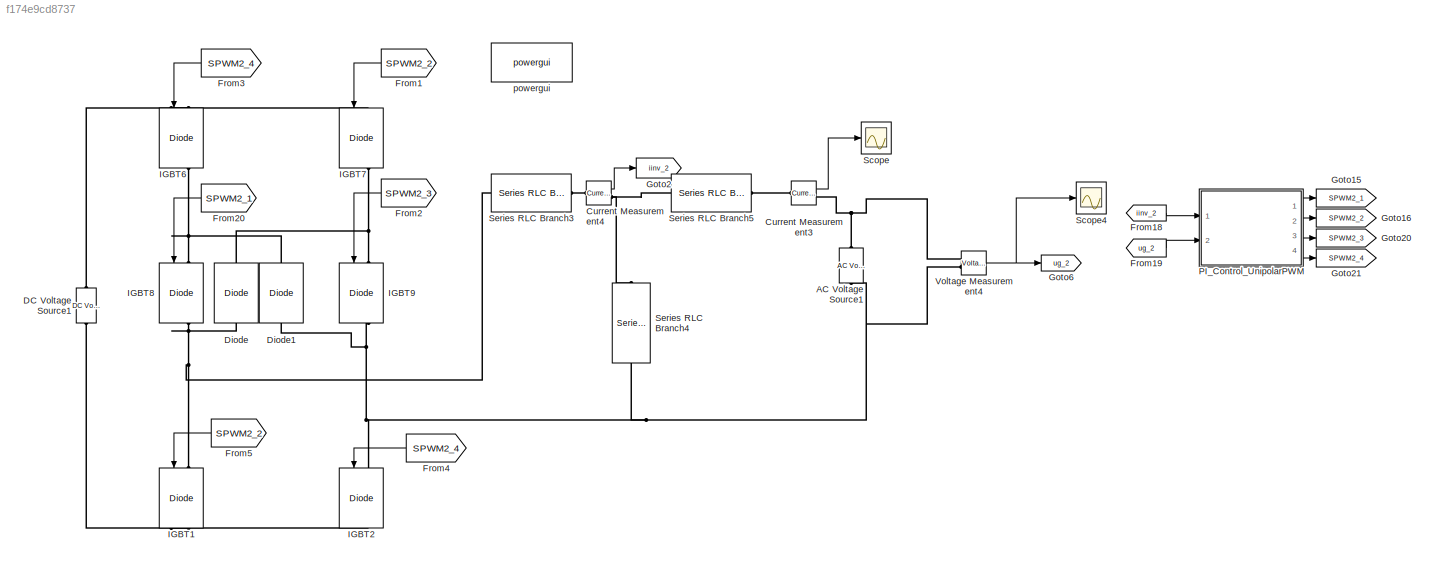
MODEL slx_f174e9cd8737
KIND model
CONFIG AbsTol = auto
CONFIG EnableMultiTasking = off
CONFIG FixedStep = 5e-7
CONFIG MaxStep = auto
CONFIG MinStep = auto
CONFIG RelTol = 1e-3
CONFIG SampleTimeConstraint = Unconstrained
CONFIG SolverName = FixedStepDiscrete
CONFIG StartTime = 0.0
CONFIG StopTime = 2
BLOCK [Reference] AC Voltage Source1  REF=powerlib/Electrical
Sources/AC Voltage Source
  NameLocation = right
  Ports = [0, 0, 0, 0, 0, 1, 1]
  SourceBlock = powerlib/Electrical\nSources/AC Voltage Source
  SourceProductBaseCode = PS
  SourceType = AC Voltage Source
BLOCK [Reference] Current Measurement3  REF=powerlib/Measurements/Current Measurement
  NameLocation = top
  Ports = [0, 1, 0, 0, 0, 1, 1]
  SourceBlock = powerlib/Measurements/Current Measurement
  SourceProductBaseCode = PS
  SourceType = Current Measurement
  UserDataPersistent = on
BLOCK [Reference] Current Measurement4  REF=powerlib/Measurements/Current Measurement
  NameLocation = top
  Ports = [0, 1, 0, 0, 0, 1, 1]
  SourceBlock = powerlib/Measurements/Current Measurement
  SourceProductBaseCode = PS
  SourceType = Current Measurement
  UserDataPersistent = on
BLOCK [Reference] DC Voltage Source1  REF=powerlib/Electrical
Sources/DC Voltage Source
  NameLocation = right
  Ports = [0, 0, 0, 0, 0, 1, 1]
  SourceBlock = powerlib/Electrical\nSources/DC Voltage Source
  SourceProductBaseCode = PS
  SourceType = DC Voltage Source
BLOCK [Reference] Diode  REF=powerlib/Power
Electronics/Diode
  NameLocation = right
  Ports = [0, 0, 0, 0, 0, 1, 1]
  SourceBlock = powerlib/Power\nElectronics/Diode
  SourceProductBaseCode = PS
  SourceType = Diode
BLOCK [Reference] Diode1  REF=powerlib/Power
Electronics/Diode
  NameLocation = right
  Ports = [0, 0, 0, 0, 0, 1, 1]
  SourceBlock = powerlib/Power\nElectronics/Diode
  SourceProductBaseCode = PS
  SourceType = Diode
BLOCK [From] From1
  GotoTag = SPWM2_2
  NameLocation = top
BLOCK [From] From18
  GotoTag = iinv_2
BLOCK [From] From19
  GotoTag = ug_2
BLOCK [From] From2
  GotoTag = SPWM2_3
  NameLocation = top
BLOCK [From] From20
  GotoTag = SPWM2_1
  NameLocation = top
BLOCK [From] From3
  GotoTag = SPWM2_4
  NameLocation = top
BLOCK [From] From4
  GotoTag = SPWM2_4
  NameLocation = top
BLOCK [From] From5
  GotoTag = SPWM2_2
  NameLocation = top
BLOCK [Goto] Goto15
  GotoTag = SPWM2_1
BLOCK [Goto] Goto16
  GotoTag = SPWM2_2
BLOCK [Goto] Goto2
  GotoTag = iinv_2
BLOCK [Goto] Goto20
  GotoTag = SPWM2_3
BLOCK [Goto] Goto21
  GotoTag = SPWM2_4
BLOCK [Goto] Goto6
  GotoTag = ug_2
BLOCK [Reference] IGBT1  REF=powerlib/Power
Electronics/IGBT//Diode
  NameLocation = left
  Ports = [1, 1, 0, 0, 0, 1, 1]
  SourceBlock = powerlib/Power\nElectronics/IGBT//Diode
  SourceProductBaseCode = PS
  SourceType = IGBT/Diode
BLOCK [Reference] IGBT2  REF=powerlib/Power
Electronics/IGBT//Diode
  NameLocation = left
  Ports = [1, 1, 0, 0, 0, 1, 1]
  SourceBlock = powerlib/Power\nElectronics/IGBT//Diode
  SourceProductBaseCode = PS
  SourceType = IGBT/Diode
BLOCK [Reference] IGBT6  REF=powerlib/Power
Electronics/IGBT//Diode
  NameLocation = left
  Ports = [1, 1, 0, 0, 0, 1, 1]
  SourceBlock = powerlib/Power\nElectronics/IGBT//Diode
  SourceProductBaseCode = PS
  SourceType = IGBT/Diode
BLOCK [Reference] IGBT7  REF=powerlib/Power
Electronics/IGBT//Diode
  NameLocation = left
  Ports = [1, 1, 0, 0, 0, 1, 1]
  SourceBlock = powerlib/Power\nElectronics/IGBT//Diode
  SourceProductBaseCode = PS
  SourceType = IGBT/Diode
BLOCK [Reference] IGBT8  REF=powerlib/Power
Electronics/IGBT//Diode
  NameLocation = left
  Ports = [1, 1, 0, 0, 0, 1, 1]
  SourceBlock = powerlib/Power\nElectronics/IGBT//Diode
  SourceProductBaseCode = PS
  SourceType = IGBT/Diode
BLOCK [Reference] IGBT9  REF=powerlib/Power
Electronics/IGBT//Diode
  NameLocation = left
  Ports = [1, 1, 0, 0, 0, 1, 1]
  SourceBlock = powerlib/Power\nElectronics/IGBT//Diode
  SourceProductBaseCode = PS
  SourceType = IGBT/Diode
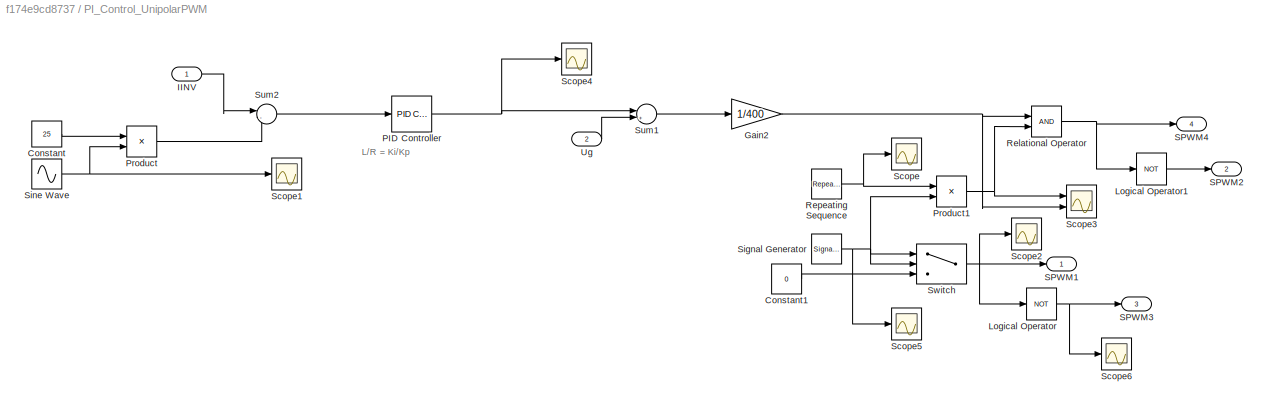
BLOCK [SubSystem] PI_Control_UnipolarPWM
  Ports = [2, 4]
  RequestExecContextInheritance = off
BLOCK [Constant] PI_Control_UnipolarPWM/Constant
  Value = 25
BLOCK [Constant] PI_Control_UnipolarPWM/Constant1
  Value = 0
BLOCK [Gain] PI_Control_UnipolarPWM/Gain2
  Gain = 1/400
BLOCK [Inport] PI_Control_UnipolarPWM/IINV
BLOCK [Logic] PI_Control_UnipolarPWM/Logical Operator
  AllPortsSameDT = off
  Operator = NOT
  OutDataTypeStr = boolean
  Ports = [1, 1]
BLOCK [Logic] PI_Control_UnipolarPWM/Logical Operator1
  AllPortsSameDT = off
  Operator = NOT
  OutDataTypeStr = boolean
  Ports = [1, 1]
BLOCK [Reference] PI_Control_UnipolarPWM/PID Controller  REF=pid_lib/PID Controller
  Ports = [1, 1]
  SourceBlock = pid_lib/PID Controller
  SourceProductBaseCode = SL
  SourceType = PID 1dof
BLOCK [Product] PI_Control_UnipolarPWM/Product
  Ports = [2, 1]
BLOCK [Product] PI_Control_UnipolarPWM/Product1
  Ports = [2, 1]
BLOCK [RelationalOperator] PI_Control_UnipolarPWM/Relational Operator
  InputSameDT = off
  OutDataTypeStr = boolean
  Ports = [2, 1]
  RndMeth = Simplest
BLOCK [Reference] PI_Control_UnipolarPWM/Repeating Sequence  REF=simulink/Sources/Repeating
Sequence
  Ports = [0, 1]
  SourceBlock = simulink/Sources/Repeating\nSequence
  SourceProductBaseCode = SL
  SourceType = Repeating table
BLOCK [Outport] PI_Control_UnipolarPWM/SPWM1
BLOCK [Outport] PI_Control_UnipolarPWM/SPWM2
  Port = 2
BLOCK [Outport] PI_Control_UnipolarPWM/SPWM3
  Port = 3
BLOCK [Outport] PI_Control_UnipolarPWM/SPWM4
  Port = 4
BLOCK [Scope] PI_Control_UnipolarPWM/Scope
  Floating = off
  NumInputPorts = 1
  Ports = [1]
  ScopeSpecificationString = Simulink.scopes.TimeScopeBlockCfg('CurrentConfiguration', extmgr.ConfigurationSet(extmgr.Configuration('Core','General UI',true),extmgr.Configuration('Core','Source UI',true),extmgr.Configuration('Sources','WiredSimulink',true,'DataLoggingVariableName','ScopeData1'),extmgr.Configuration('Visuals','Time Domain',true,'SerializedDisplays',{struct('MinYLimReal','-0.125','MaxYLimReal','1.125','YLabelRe...<+1409ch>
BLOCK [Scope] PI_Control_UnipolarPWM/Scope1
  Floating = off
  NumInputPorts = 1
  Ports = [1]
  ScopeSpecificationString = Simulink.scopes.TimeScopeBlockCfg('CurrentConfiguration', extmgr.ConfigurationSet(extmgr.Configuration('Core','General UI',true),extmgr.Configuration('Core','Source UI',true),extmgr.Configuration('Sources','WiredSimulink',true,'DataLoggingVariableName','ScopeData7'),extmgr.Configuration('Visuals','Time Domain',true,'SerializedDisplays',{struct('MinYLimReal','-1.09034','MaxYLimReal','1.16481','YLab...<+1387ch>
BLOCK [Scope] PI_Control_UnipolarPWM/Scope2
  Floating = off
  NumInputPorts = 1
  Ports = [1]
  ScopeSpecificationString = Simulink.scopes.TimeScopeBlockCfg('CurrentConfiguration', extmgr.ConfigurationSet(extmgr.Configuration('Core','General UI',true),extmgr.Configuration('Core','Source UI',true),extmgr.Configuration('Sources','WiredSimulink',true,'DataLoggingVariableName','ScopeData2'),extmgr.Configuration('Visuals','Time Domain',true,'SerializedDisplays',{struct('MinYLimReal','-1.00448','MaxYLimReal','1.07541','YLab...<+1413ch>
BLOCK [Scope] PI_Control_UnipolarPWM/Scope3
  Floating = off
  NumInputPorts = 2
  Ports = [2]
  ScopeSpecificationString = Simulink.scopes.TimeScopeBlockCfg('CurrentConfiguration', extmgr.ConfigurationSet(extmgr.Configuration('Core','General UI',true),extmgr.Configuration('Core','Source UI',true),extmgr.Configuration('Sources','WiredSimulink',true,'DataLoggingVariableName','ScopeData3'),extmgr.Configuration('Visuals','Time Domain',true,'SerializedDisplays',{struct('MinYLimReal','-1.07126','MaxYLimReal','1.18144','YLab...<+1454ch>
BLOCK [Scope] PI_Control_UnipolarPWM/Scope4
  Floating = off
  NumInputPorts = 1
  Ports = [1]
  ScopeSpecificationString = Simulink.scopes.TimeScopeBlockCfg('CurrentConfiguration', extmgr.ConfigurationSet(extmgr.Configuration('Core','General UI',true),extmgr.Configuration('Core','Source UI',true),extmgr.Configuration('Sources','WiredSimulink',true,'DataLoggingVariableName','ScopeData9'),extmgr.Configuration('Visuals','Time Domain',true,'SerializedDisplays',{struct('MinYLimReal','-180181647.51671','MaxYLimReal','200201...<+1452ch>
BLOCK [Scope] PI_Control_UnipolarPWM/Scope5
  Floating = off
  NumInputPorts = 1
  Ports = [1]
  ScopeSpecificationString = Simulink.scopes.TimeScopeBlockCfg('CurrentConfiguration', extmgr.ConfigurationSet(extmgr.Configuration('Core','General UI',true),extmgr.Configuration('Core','Source UI',true),extmgr.Configuration('Sources','WiredSimulink',true,'DataLoggingVariableName','ScopeData7'),extmgr.Configuration('Visuals','Time Domain',true,'SerializedDisplays',{struct('MinYLimReal','-1.0819','MaxYLimReal','1.25','YLabelRe...<+1415ch>
BLOCK [Scope] PI_Control_UnipolarPWM/Scope6
  Floating = off
  NumInputPorts = 1
  Ports = [1]
  ScopeSpecificationString = Simulink.scopes.TimeScopeBlockCfg('CurrentConfiguration', extmgr.ConfigurationSet(extmgr.Configuration('Core','General UI',true),extmgr.Configuration('Core','Source UI',true),extmgr.Configuration('Sources','WiredSimulink',true,'DataLoggingVariableName','ScopeData1'),extmgr.Configuration('Visuals','Time Domain',true,'SerializedDisplays',{struct('MinYLimReal','-1.00448','MaxYLimReal','1.07541','YLab...<+1423ch>
BLOCK [SignalGenerator] PI_Control_UnipolarPWM/Signal Generator
  Amplitude = -1
  Frequency = 50*2*pi
  Ports = [0, 1]
  Units = rad/sec
  WaveForm = square
BLOCK [Sin] PI_Control_UnipolarPWM/Sine Wave
  Frequency = 100*pi
  Ports = [0, 1]
  SampleTime = 1e-6
BLOCK [Sum] PI_Control_UnipolarPWM/Sum1
  Inputs = |++
  Ports = [2, 1]
BLOCK [Sum] PI_Control_UnipolarPWM/Sum2
  Inputs = |-+
  Ports = [2, 1]
BLOCK [Switch] PI_Control_UnipolarPWM/Switch
  InputSameDT = off
  SaturateOnIntegerOverflow = off
BLOCK [Inport] PI_Control_UnipolarPWM/Ug
  Port = 2
BLOCK [Scope] Scope
  Floating = off
  NumInputPorts = 1
  Ports = [1]
  ScopeSpecificationString = Simulink.scopes.TimeScopeBlockCfg('CurrentConfiguration', extmgr.ConfigurationSet(extmgr.Configuration('Core','General UI',true),extmgr.Configuration('Core','Source UI',true),extmgr.Configuration('Sources','WiredSimulink',true,'DataLoggingVariableName','ig','DataLogging',true,'SampleTime','1e-6'),extmgr.Configuration('Visuals','Time Domain',true,'SerializedDisplays',{struct('MinYLimReal','-27.5334...<+1460ch>
BLOCK [Scope] Scope4
  Floating = off
  NumInputPorts = 1
  Ports = [1]
  ScopeSpecificationString = Simulink.scopes.TimeScopeBlockCfg('CurrentConfiguration', extmgr.ConfigurationSet(extmgr.Configuration('Core','General UI',true),extmgr.Configuration('Core','Source UI',true),extmgr.Configuration('Sources','WiredSimulink',true,'DataLoggingVariableName','ScopeData1'),extmgr.Configuration('Visuals','Time Domain',true,'SerializedDisplays',{struct('MinYLimReal','-336.70014','MaxYLimReal','346.17098','...<+1412ch>
BLOCK [Reference] Series RLC Branch3  REF=powerlib/Elements/Series RLC Branch
  Ports = [0, 0, 0, 0, 0, 1, 1]
  SourceBlock = powerlib/Elements/Series RLC Branch
  SourceProductBaseCode = PS
  SourceType = Series RLC Branch
BLOCK [Reference] Series RLC Branch4  REF=powerlib/Elements/Series RLC Branch
  NameLocation = left
  Ports = [0, 0, 0, 0, 0, 1, 1]
  SourceBlock = powerlib/Elements/Series RLC Branch
  SourceProductBaseCode = PS
  SourceType = Series RLC Branch
BLOCK [Reference] Series RLC Branch5  REF=powerlib/Elements/Series RLC Branch
  Ports = [0, 0, 0, 0, 0, 1, 1]
  SourceBlock = powerlib/Elements/Series RLC Branch
  SourceProductBaseCode = PS
  SourceType = Series RLC Branch
BLOCK [Reference] Voltage Measurement4  REF=powerlib/Measurements/Voltage Measurement
  Ports = [0, 1, 0, 0, 0, 2]
  SourceBlock = powerlib/Measurements/Voltage Measurement
  SourceProductBaseCode = PS
  SourceType = Voltage Measurement
  UserDataPersistent = on
BLOCK [Reference] powergui  REF=powerlib/powergui
  Ports = []
  Priority = 1
  SourceBlock = powerlib/powergui
  SourceProductBaseCode = PS
  SourceType = PSB option menu block
ANNOTATION PI_Control_UnipolarPWM: L/R = K i /Kp
LINE Current Measurement3:1 -> Scope:1
LINE Current Measurement4:1 -> Goto2:1
LINE From18:1 -> PI_Control_UnipolarPWM:1
LINE From19:1 -> PI_Control_UnipolarPWM:2
LINE From1:1 -> IGBT7:1
LINE From20:1 -> IGBT8:1
LINE From2:1 -> IGBT9:1
LINE From3:1 -> IGBT6:1
LINE From4:1 -> IGBT2:1
LINE From5:1 -> IGBT1:1
LINE PI_Control_UnipolarPWM/Constant1:1 -> PI_Control_UnipolarPWM/Switch:3
LINE PI_Control_UnipolarPWM/Constant:1 -> PI_Control_UnipolarPWM/Product:1
NET PI_Control_UnipolarPWM/Gain2:1 -> PI_Control_UnipolarPWM/Relational Operator:1, PI_Control_UnipolarPWM/Scope3:2
LINE PI_Control_UnipolarPWM/IINV:1 -> PI_Control_UnipolarPWM/Sum2:1
LINE PI_Control_UnipolarPWM/Logical Operator1:1 -> PI_Control_UnipolarPWM/SPWM2:1
NET PI_Control_UnipolarPWM/Logical Operator:1 -> PI_Control_UnipolarPWM/SPWM3:1, PI_Control_UnipolarPWM/Scope6:1
NET PI_Control_UnipolarPWM/PID Controller:1 -> PI_Control_UnipolarPWM/Scope4:1, PI_Control_UnipolarPWM/Sum1:1
NET PI_Control_UnipolarPWM/Product1:1 -> PI_Control_UnipolarPWM/Relational Operator:2, PI_Control_UnipolarPWM/Scope3:1
LINE PI_Control_UnipolarPWM/Product:1 -> PI_Control_UnipolarPWM/Sum2:2
NET PI_Control_UnipolarPWM/Relational Operator:1 -> PI_Control_UnipolarPWM/Logical Operator1:1, PI_Control_UnipolarPWM/SPWM4:1
NET PI_Control_UnipolarPWM/Repeating Sequence:1 -> PI_Control_UnipolarPWM/Product1:1, PI_Control_UnipolarPWM/Scope:1
NET PI_Control_UnipolarPWM/Signal Generator:1 -> PI_Control_UnipolarPWM/Product1:2, PI_Control_UnipolarPWM/Scope5:1, PI_Control_UnipolarPWM/Switch:1, PI_Control_UnipolarPWM/Switch:2
NET PI_Control_UnipolarPWM/Sine Wave:1 -> PI_Control_UnipolarPWM/Product:2, PI_Control_UnipolarPWM/Scope1:1
LINE PI_Control_UnipolarPWM/Sum1:1 -> PI_Control_UnipolarPWM/Gain2:1
LINE PI_Control_UnipolarPWM/Sum2:1 -> PI_Control_UnipolarPWM/PID Controller:1
NET PI_Control_UnipolarPWM/Switch:1 -> PI_Control_UnipolarPWM/Logical Operator:1, PI_Control_UnipolarPWM/SPWM1:1, PI_Control_UnipolarPWM/Scope2:1
LINE PI_Control_UnipolarPWM/Ug:1 -> PI_Control_UnipolarPWM/Sum1:2
LINE PI_Control_UnipolarPWM:1 -> Goto15:1
LINE PI_Control_UnipolarPWM:2 -> Goto16:1
LINE PI_Control_UnipolarPWM:3 -> Goto20:1
LINE PI_Control_UnipolarPWM:4 -> Goto21:1
NET Voltage Measurement4:1 -> Goto6:1, Scope4:1
PNET net1: AC Voltage Source1:LConn1 -- Diode1:LConn1 -- IGBT2:LConn1 -- IGBT9:RConn1 -- Series RLC Branch4:RConn1 -- Voltage Measurement4:LConn2
PNET net2: AC Voltage Source1:RConn1 -- Current Measurement3:RConn1 -- Voltage Measurement4:LConn1
PLINE Current Measurement3:LConn1 -- Series RLC Branch5:RConn1
PLINE Current Measurement4:LConn1 -- Series RLC Branch3:RConn1
PNET net3: Current Measurement4:RConn1 -- Series RLC Branch4:LConn1 -- Series RLC Branch5:LConn1
PNET net4: DC Voltage Source1:LConn1 -- IGBT1:RConn1 -- IGBT2:RConn1
PNET net5: DC Voltage Source1:RConn1 -- IGBT6:LConn1 -- IGBT7:LConn1
PNET net6: Diode1:RConn1 -- IGBT6:RConn1 -- IGBT8:LConn1
PNET net7: Diode:LConn1 -- IGBT1:LConn1 -- IGBT8:RConn1 -- Series RLC Branch3:LConn1
PNET net8: Diode:RConn1 -- IGBT7:RConn1 -- IGBT9:LConn1
note: NET lines group one-source signal fan-out (src -> all destinations, sorted); 1:1 wires keep LINE; PNET lines group multi-terminal physical nets as a canonical sorted terminal list (undirected conserving connections); 2-terminal nets keep the pairwise PLINE form
